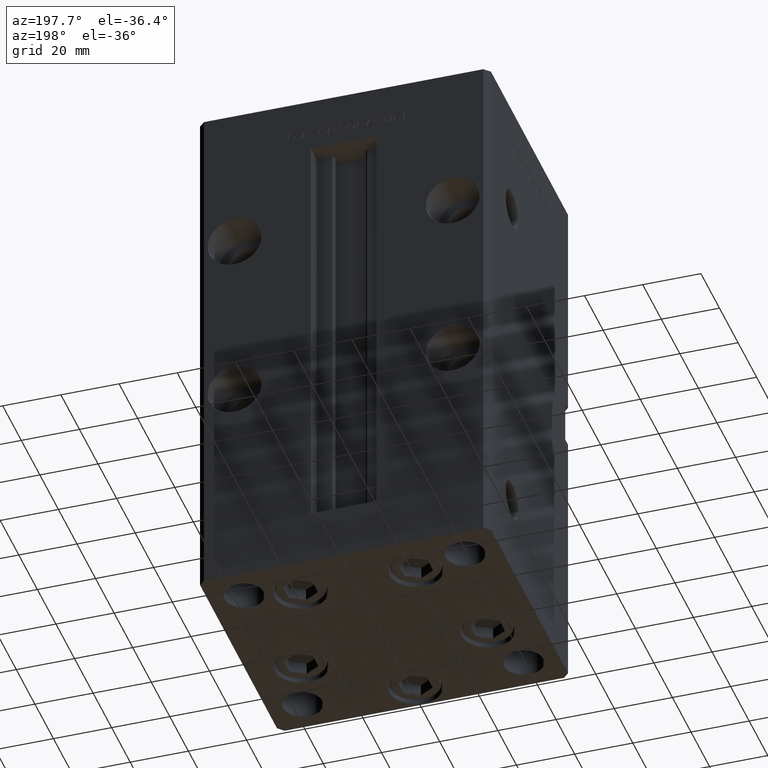
[diagram: clean part render]
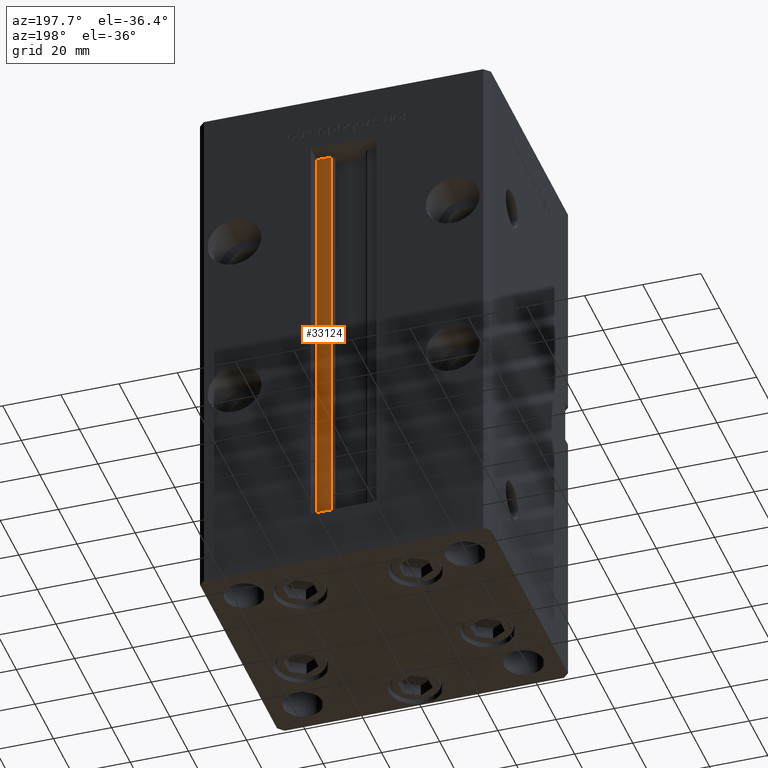
[diagram: same view with one face highlighted and labeled with its STEP entity id]
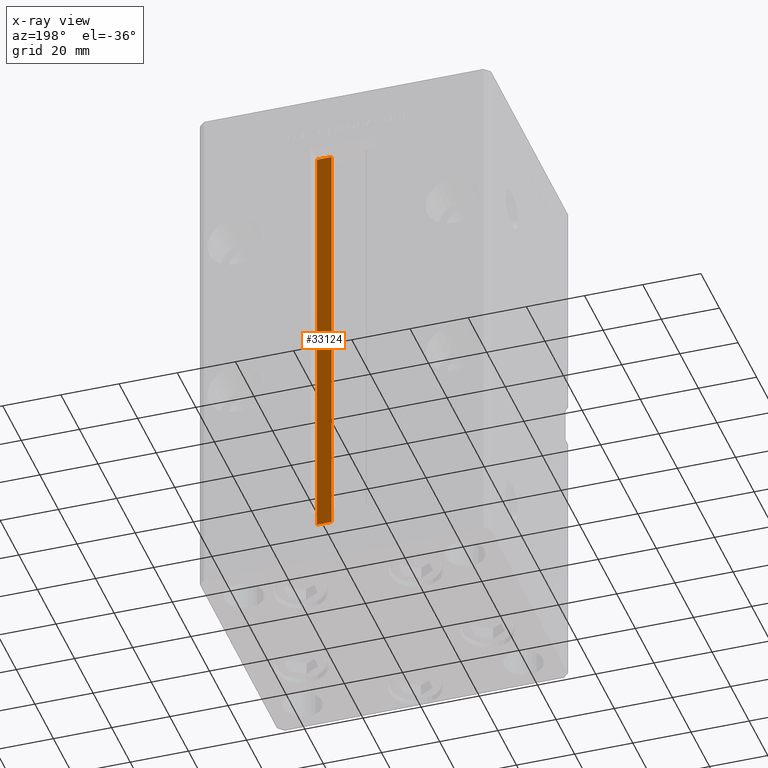
[diagram: x-ray of the same camera — body ghosted, the highlighted face saturated]
A machine part, auxiliary view. The second image highlights one B-rep face of the part: STEP entity #33124.
The next image is the same camera in x-ray: the body ghosted, the highlighted face saturated — about 0% of this face is hidden behind the body in this view.
In plain terms, the highlighted planar face has unit normal (0, -1, 0).
Its self-contained STEP definition (entity closure, byte-faithful):
#592 = EDGE_LOOP ( 'NONE', ( #15709, #17334, #18766, #23762 ) ) ;
#1092 = CARTESIAN_POINT ( 'NONE',  ( 11.24999999999999645, 37.00000000000000000, 148.5000000000000000 ) ) ;
#3584 = EDGE_CURVE ( 'NONE', #34684, #25238, #9627, .T. ) ;
#4019 = AXIS2_PLACEMENT_3D ( 'NONE', #50031, #5340, #45735 ) ;
#4096 = VERTEX_POINT ( 'NONE', #1092 ) ;
#5340 = DIRECTION ( 'NONE',  ( 0.000000000000000000, -1.000000000000000000, 0.000000000000000000 ) ) ;
#8903 = VECTOR ( 'NONE', #46552, 1000.000000000000000 ) ;
#9627 = LINE ( 'NONE', #37632, #11733 ) ;
#11733 = VECTOR ( 'NONE', #17420, 1000.000000000000000 ) ;
#13575 = VECTOR ( 'NONE', #35556, 1000.000000000000000 ) ;
#15256 = EDGE_CURVE ( 'NONE', #4096, #25238, #49900, .T. ) ;
#15709 = ORIENTED_EDGE ( 'NONE', *, *, #41555, .F. ) ;
#17334 = ORIENTED_EDGE ( 'NONE', *, *, #23055, .F. ) ;
#17420 = DIRECTION ( 'NONE',  ( -0.000000000000000000, -0.000000000000000000, 1.000000000000000000 ) ) ;
#18353 = LINE ( 'NONE', #19140, #13575 ) ;
#18766 = ORIENTED_EDGE ( 'NONE', *, *, #3584, .T. ) ;
#19140 = CARTESIAN_POINT ( 'NONE',  ( 11.24999999999999645, 37.00000000000000000, 0.000000000000000000 ) ) ;
#22942 = CARTESIAN_POINT ( 'NONE',  ( 11.24999999999999645, 37.00000000000000000, 0.000000000000000000 ) ) ;
#23055 = EDGE_CURVE ( 'NONE', #34684, #28905, #25042, .T. ) ;
#23762 = ORIENTED_EDGE ( 'NONE', *, *, #15256, .F. ) ;
#25042 = LINE ( 'NONE', #34169, #8903 ) ;
#25238 = VERTEX_POINT ( 'NONE', #34912 ) ;
#28905 = VERTEX_POINT ( 'NONE', #22942 ) ;
#29815 = FACE_OUTER_BOUND ( 'NONE', #592, .T. ) ;
#33124 = ADVANCED_FACE ( 'NONE', ( #29815 ), #33603, .F. ) ;
#33603 = PLANE ( 'NONE',  #4019 ) ;
#34169 = CARTESIAN_POINT ( 'NONE',  ( 6.183333333333996151, 37.00000000000000000, 0.000000000000000000 ) ) ;
#34684 = VERTEX_POINT ( 'NONE', #40982 ) ;
#34912 = CARTESIAN_POINT ( 'NONE',  ( 6.183333333333996151, 37.00000000000000000, 148.5000000000000000 ) ) ;
#35556 = DIRECTION ( 'NONE',  ( -0.000000000000000000, -0.000000000000000000, 1.000000000000000000 ) ) ;
#36014 = VECTOR ( 'NONE', #42083, 1000.000000000000000 ) ;
#37632 = CARTESIAN_POINT ( 'NONE',  ( 6.183333333333996151, 37.00000000000000000, 0.000000000000000000 ) ) ;
#37786 = CARTESIAN_POINT ( 'NONE',  ( 0.000000000000000000, 37.00000000000000000, 148.5000000000000000 ) ) ;
#40982 = CARTESIAN_POINT ( 'NONE',  ( 6.183333333333996151, 37.00000000000000000, 0.000000000000000000 ) ) ;
#41555 = EDGE_CURVE ( 'NONE', #28905, #4096, #18353, .T. ) ;
#42083 = DIRECTION ( 'NONE',  ( -1.000000000000000000, 0.000000000000000000, 0.000000000000000000 ) ) ;
#45735 = DIRECTION ( 'NONE',  ( 0.000000000000000000, -0.000000000000000000, -1.000000000000000000 ) ) ;
#46552 = DIRECTION ( 'NONE',  ( 1.000000000000000000, 0.000000000000000000, 0.000000000000000000 ) ) ;
#49900 = LINE ( 'NONE', #37786, #36014 ) ;
#50031 = CARTESIAN_POINT ( 'NONE',  ( 6.183333333333996151, 37.00000000000000000, 0.000000000000000000 ) ) ;